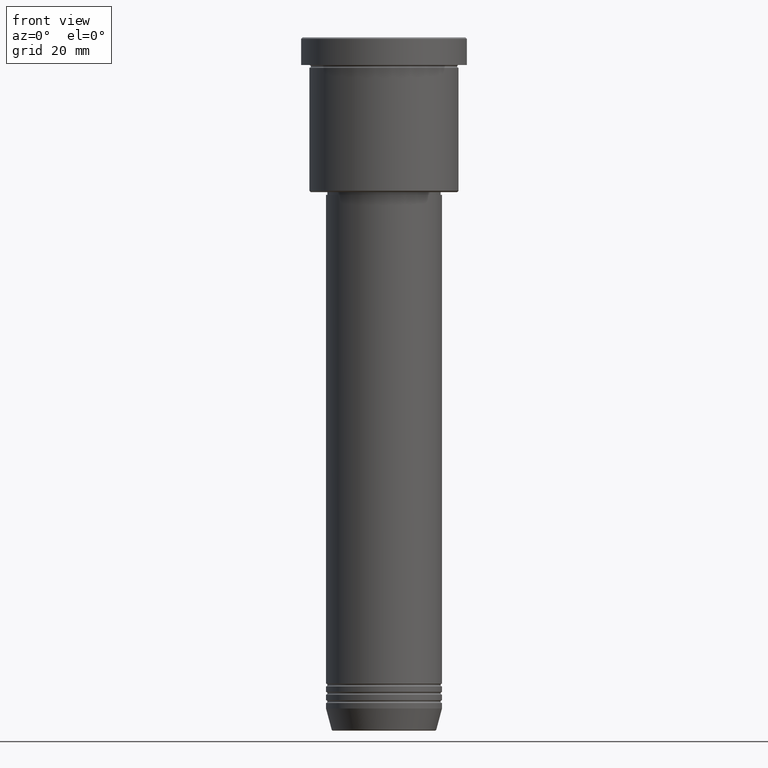
[diagram: clean part render]
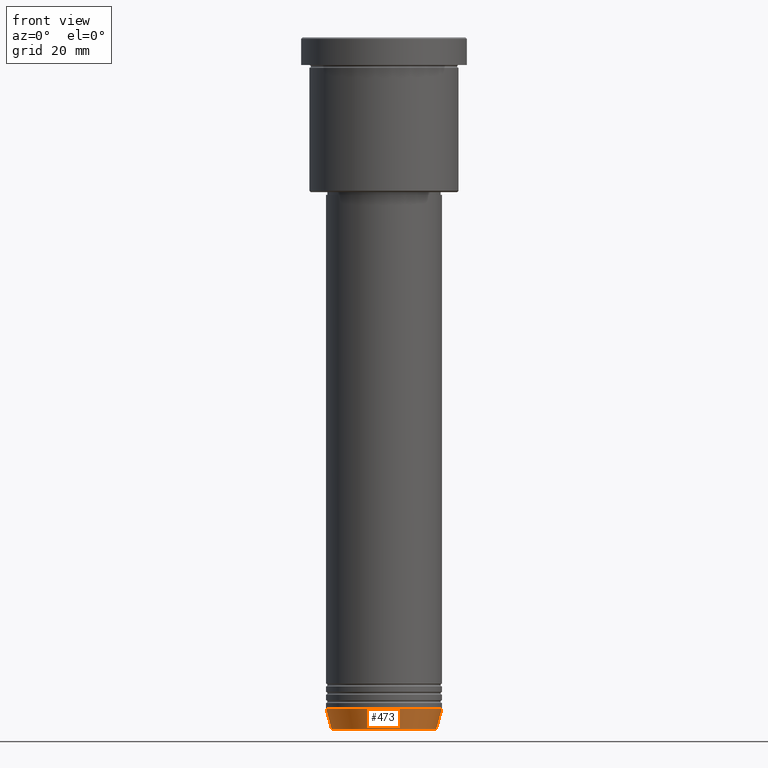
[diagram: same view with one face highlighted and labeled with its STEP entity id]
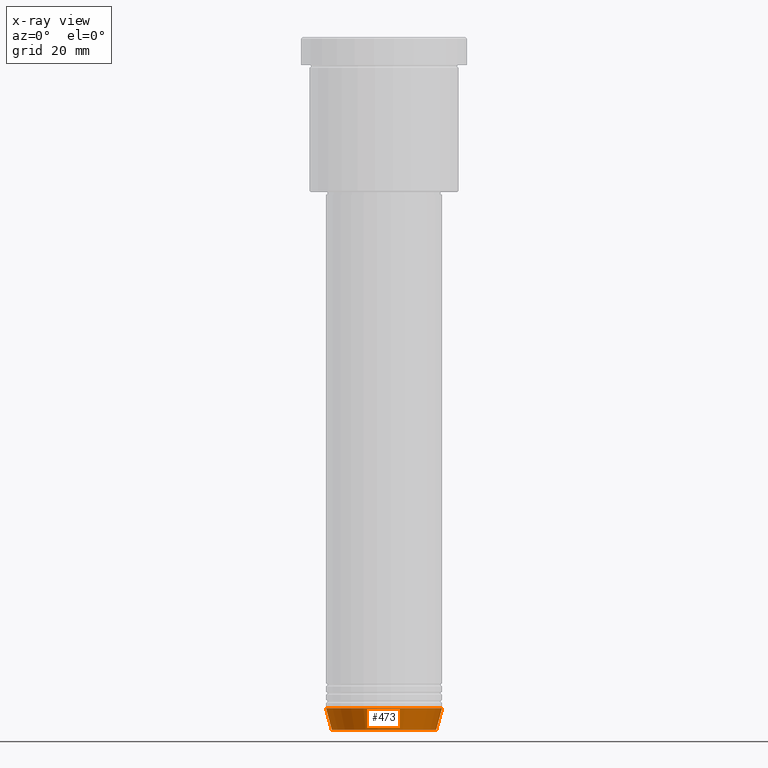
[diagram: x-ray of the same camera — body ghosted, the highlighted face saturated]
A machine part, front view. The second image highlights one B-rep face of the part: STEP entity #473.
The next image is the same camera in x-ray: the body ghosted, the highlighted face saturated — about 0% of this face is hidden behind the body in this view.
In plain terms, the highlighted conical surface has half-angle 15 deg.
Its self-contained STEP definition (entity closure, byte-faithful):
#52 = CARTESIAN_POINT ( 'NONE',  ( -21.00000000000000000, 2.571758278209441661E-15, -243.0000000000000284 ) ) ;
#57 = ORIENTED_EDGE ( 'NONE', *, *, #923, .T. ) ;
#69 = ORIENTED_EDGE ( 'NONE', *, *, #466, .F. ) ;
#129 = CARTESIAN_POINT ( 'NONE',  ( 21.00000000000000000, 0.000000000000000000, -243.0000000000000284 ) ) ;
#131 = VECTOR ( 'NONE', #1131, 1000.000000000000000 ) ;
#133 = DIRECTION ( 'NONE',  ( 1.000000000000000000, 0.000000000000000000, 0.000000000000000000 ) ) ;
#176 = ORIENTED_EDGE ( 'NONE', *, *, #646, .T. ) ;
#201 = CARTESIAN_POINT ( 'NONE',  ( 18.95570587970606624, 0.000000000000000000, -250.6294095225512422 ) ) ;
#222 = CARTESIAN_POINT ( 'NONE',  ( 0.000000000000000000, 0.000000000000000000, -250.6294095225512422 ) ) ;
#300 = CARTESIAN_POINT ( 'NONE',  ( 21.00000000000000000, 0.000000000000000000, -243.0000000000000284 ) ) ;
#302 = FACE_OUTER_BOUND ( 'NONE', #966, .T. ) ;
#312 = DIRECTION ( 'NONE',  ( -0.000000000000000000, -0.000000000000000000, 1.000000000000000000 ) ) ;
#397 = CARTESIAN_POINT ( 'NONE',  ( -21.00000000000000000, 2.571758278209441661E-15, -243.0000000000000284 ) ) ;
#402 = LINE ( 'NONE', #397, #131 ) ;
#429 = CIRCLE ( 'NONE', #1017, 21.00000000000000000 ) ;
#446 = EDGE_CURVE ( 'NONE', #622, #554, #402, .T. ) ;
#466 = EDGE_CURVE ( 'NONE', #554, #831, #429, .T. ) ;
#473 = ADVANCED_FACE ( 'NONE', ( #302 ), #1058, .T. ) ;
#517 = DIRECTION ( 'NONE',  ( -0.000000000000000000, -0.000000000000000000, 1.000000000000000000 ) ) ;
#525 = VERTEX_POINT ( 'NONE', #201 ) ;
#554 = VERTEX_POINT ( 'NONE', #52 ) ;
#556 = AXIS2_PLACEMENT_3D ( 'NONE', #763, #312, #752 ) ;
#622 = VERTEX_POINT ( 'NONE', #868 ) ;
#646 = EDGE_CURVE ( 'NONE', #622, #525, #747, .T. ) ;
#685 = DIRECTION ( 'NONE',  ( -0.000000000000000000, -0.000000000000000000, 1.000000000000000000 ) ) ;
#747 = CIRCLE ( 'NONE', #917, 18.95570587970606624 ) ;
#752 = DIRECTION ( 'NONE',  ( 1.000000000000000000, 0.000000000000000000, 0.000000000000000000 ) ) ;
#763 = CARTESIAN_POINT ( 'NONE',  ( 0.000000000000000000, 0.000000000000000000, -243.0000000000000284 ) ) ;
#794 = VECTOR ( 'NONE', #1023, 1000.000000000000000 ) ;
#831 = VERTEX_POINT ( 'NONE', #129 ) ;
#834 = CARTESIAN_POINT ( 'NONE',  ( 0.000000000000000000, 0.000000000000000000, -243.0000000000000284 ) ) ;
#868 = CARTESIAN_POINT ( 'NONE',  ( -18.95570587970606624, 2.446581365662756125E-15, -250.6294095225512422 ) ) ;
#917 = AXIS2_PLACEMENT_3D ( 'NONE', #222, #517, #950 ) ;
#923 = EDGE_CURVE ( 'NONE', #525, #831, #1118, .T. ) ;
#950 = DIRECTION ( 'NONE',  ( 1.000000000000000000, 0.000000000000000000, 0.000000000000000000 ) ) ;
#966 = EDGE_LOOP ( 'NONE', ( #1051, #176, #57, #69 ) ) ;
#1017 = AXIS2_PLACEMENT_3D ( 'NONE', #834, #685, #133 ) ;
#1023 = DIRECTION ( 'NONE',  ( 0.2588190451025213501, 0.000000000000000000, 0.9659258262890680902 ) ) ;
#1051 = ORIENTED_EDGE ( 'NONE', *, *, #446, .F. ) ;
#1058 = CONICAL_SURFACE ( 'NONE', #556, 21.00000000000000000, 0.2617993877991500740 ) ;
#1118 = LINE ( 'NONE', #300, #794 ) ;
#1131 = DIRECTION ( 'NONE',  ( -0.2588190451025213501, 3.169619151431772337E-17, 0.9659258262890680902 ) ) ;